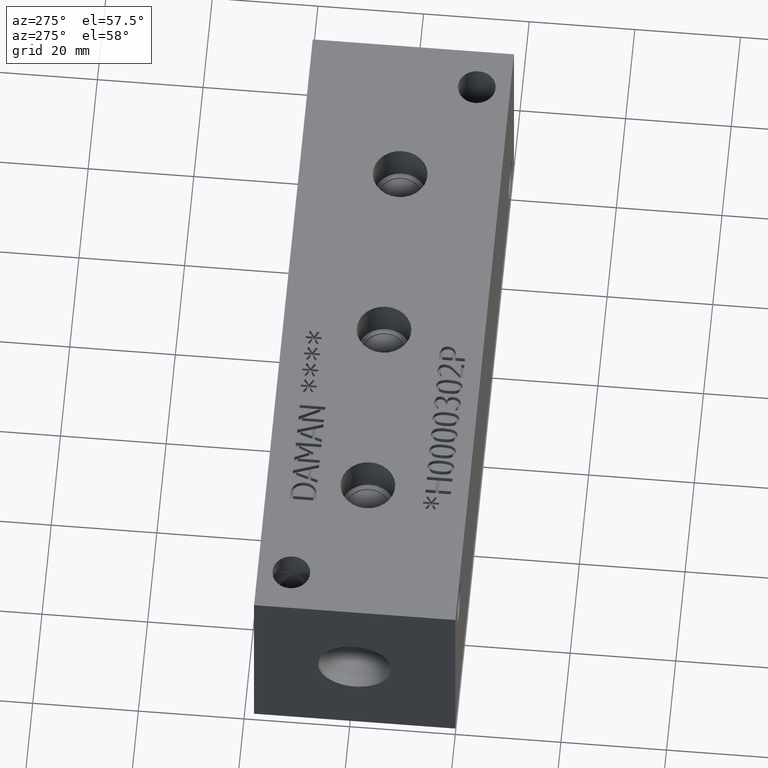
[diagram: clean part render]
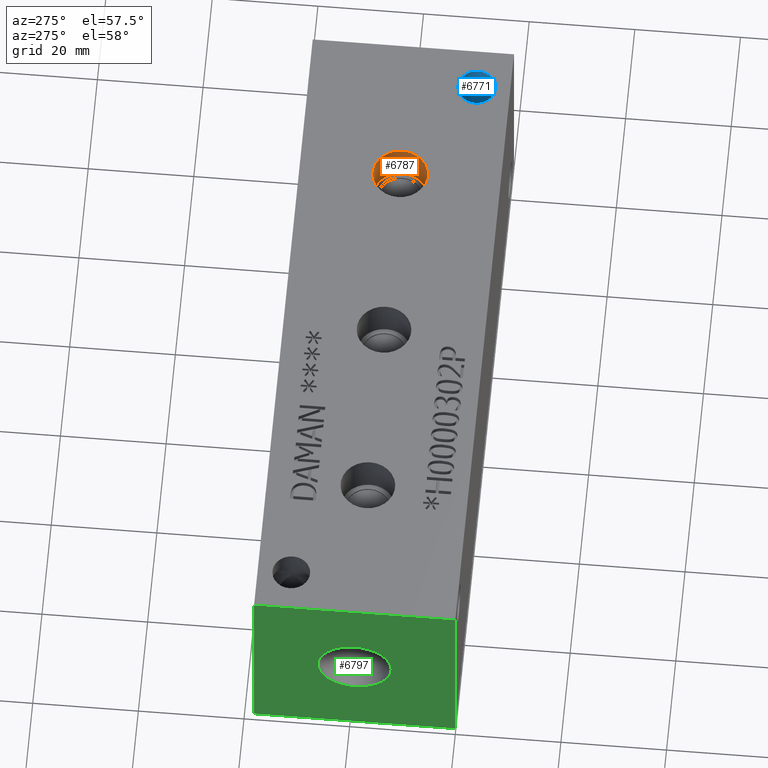
[diagram: same view with three faces highlighted in distinct colors, each labeled with its STEP entity id]
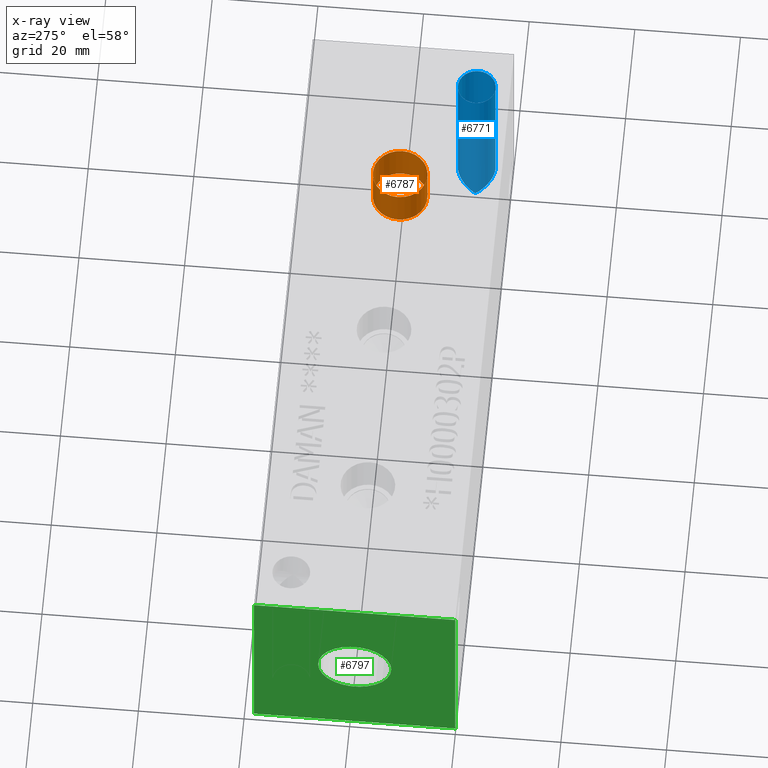
[diagram: x-ray of the same camera — body ghosted, the three highlighted faces saturated]
A machine part, auxiliary view with three faces highlighted in distinct colors.
The next image is the same camera in x-ray (body ghosted, the three faces saturated) — at least one of them is partly hidden behind the body in this view.
Their STEP definitions:

[orange] entity #6787 — the highlighted cylindrical surface (bore or boss wall) has radius 5.165 mm, axis along (0, 0, 1).
#39=CYLINDRICAL_SURFACE('',#7079,5.165);
#45=CIRCLE('',#6880,5.165);
#46=CIRCLE('',#6881,5.165);
#75=CIRCLE('',#7076,5.165);
#76=CIRCLE('',#7077,5.165);
#679=FACE_OUTER_BOUND('',#1058,.T.);
#1058=EDGE_LOOP('',(#5971,#5972,#5973,#5974,#5975,#5976));
#1734=LINE('',#11577,#2400);
#2400=VECTOR('',#8287,5.165);
#2932=VERTEX_POINT('',#10555);
#2933=VERTEX_POINT('',#10556);
#3231=VERTEX_POINT('',#11570);
#3232=VERTEX_POINT('',#11571);
#3708=EDGE_CURVE('',#2932,#2933,#45,.T.);
#3709=EDGE_CURVE('',#2933,#2932,#46,.T.);
#4154=EDGE_CURVE('',#3231,#3232,#75,.T.);
#4155=EDGE_CURVE('',#3232,#3231,#76,.T.);
#4157=EDGE_CURVE('',#2933,#3232,#1734,.T.);
#5971=ORIENTED_EDGE('',*,*,#3708,.F.);
#5972=ORIENTED_EDGE('',*,*,#3709,.F.);
#5973=ORIENTED_EDGE('',*,*,#4157,.T.);
#5974=ORIENTED_EDGE('',*,*,#4154,.F.);
#5975=ORIENTED_EDGE('',*,*,#4155,.F.);
#5976=ORIENTED_EDGE('',*,*,#4157,.F.);
#6787=ADVANCED_FACE('',(#679),#39,.F.);
#6880=AXIS2_PLACEMENT_3D('',#10557,#7495,#7496);
#6881=AXIS2_PLACEMENT_3D('',#10558,#7497,#7498);
#7076=AXIS2_PLACEMENT_3D('',#11572,#8279,#8280);
#7077=AXIS2_PLACEMENT_3D('',#11573,#8281,#8282);
#7079=AXIS2_PLACEMENT_3D('',#11576,#8285,#8286);
#7495=DIRECTION('center_axis',(0.,0.,-1.));
#7496=DIRECTION('ref_axis',(1.,0.,0.));
#7497=DIRECTION('center_axis',(0.,0.,-1.));
#7498=DIRECTION('ref_axis',(1.,0.,0.));
#8279=DIRECTION('center_axis',(0.,0.,1.));
#8280=DIRECTION('ref_axis',(1.,0.,0.));
#8281=DIRECTION('center_axis',(0.,0.,1.));
#8282=DIRECTION('ref_axis',(1.,0.,0.));
#8285=DIRECTION('center_axis',(0.,0.,1.));
#8286=DIRECTION('ref_axis',(1.,0.,0.));
#8287=DIRECTION('',(0.,0.,-1.));
#10555=CARTESIAN_POINT('',(103.59,19.05,38.1));
#10556=CARTESIAN_POINT('',(93.26,19.05,38.1));
#10557=CARTESIAN_POINT('Origin',(98.425,19.05,38.1));
#10558=CARTESIAN_POINT('Origin',(98.425,19.05,38.1));
#11570=CARTESIAN_POINT('',(103.59,19.05,30.226));
#11571=CARTESIAN_POINT('',(93.26,19.05,30.226));
#11572=CARTESIAN_POINT('Origin',(98.425,19.05,30.226));
#11573=CARTESIAN_POINT('Origin',(98.425,19.05,30.226));
#11576=CARTESIAN_POINT('Origin',(98.425,19.05,34.163));
#11577=CARTESIAN_POINT('',(93.26,19.05,34.163));

[blue] entity #6771 — the highlighted cylindrical surface (bore or boss wall) has radius 3.5687 mm, axis along (0, 0, 1).
#19=ELLIPSE('',#7033,5.04690394004086,3.5687);
#22=ELLIPSE('',#7037,5.04690394004086,3.5687);
#29=CYLINDRICAL_SURFACE('',#7039,3.5687);
#53=CIRCLE('',#6888,3.5687);
#54=CIRCLE('',#6889,3.5687);
#663=FACE_OUTER_BOUND('',#1039,.T.);
#1039=EDGE_LOOP('',(#5895,#5896,#5897,#5898,#5899,#5900));
#1721=LINE('',#11499,#2387);
#2387=VECTOR('',#8194,3.5687);
#2940=VERTEX_POINT('',#10571);
#2941=VERTEX_POINT('',#10572);
#3206=VERTEX_POINT('',#11487);
#3207=VERTEX_POINT('',#11489);
#3716=EDGE_CURVE('',#2940,#2941,#53,.T.);
#3717=EDGE_CURVE('',#2941,#2940,#54,.T.);
#4114=EDGE_CURVE('',#3207,#3206,#19,.T.);
#4117=EDGE_CURVE('',#3206,#3207,#22,.T.);
#4120=EDGE_CURVE('',#2941,#3206,#1721,.T.);
#5895=ORIENTED_EDGE('',*,*,#3716,.F.);
#5896=ORIENTED_EDGE('',*,*,#3717,.F.);
#5897=ORIENTED_EDGE('',*,*,#4120,.T.);
#5898=ORIENTED_EDGE('',*,*,#4117,.T.);
#5899=ORIENTED_EDGE('',*,*,#4114,.T.);
#5900=ORIENTED_EDGE('',*,*,#4120,.F.);
#6771=ADVANCED_FACE('',(#663),#29,.F.);
#6888=AXIS2_PLACEMENT_3D('',#10573,#7511,#7512);
#6889=AXIS2_PLACEMENT_3D('',#10574,#7513,#7514);
#7033=AXIS2_PLACEMENT_3D('',#11490,#8179,#8180);
#7037=AXIS2_PLACEMENT_3D('',#11494,#8187,#8188);
#7039=AXIS2_PLACEMENT_3D('',#11498,#8192,#8193);
#7511=DIRECTION('center_axis',(0.,0.,-1.));
#7512=DIRECTION('ref_axis',(1.,0.,0.));
#7513=DIRECTION('center_axis',(0.,0.,-1.));
#7514=DIRECTION('ref_axis',(1.,0.,0.));
#8179=DIRECTION('center_axis',(0.,-0.707106781186548,-0.707106781186547));
#8180=DIRECTION('ref_axis',(0.,-0.707106781186547,0.707106781186548));
#8187=DIRECTION('center_axis',(0.,0.707106781186548,-0.707106781186547));
#8188=DIRECTION('ref_axis',(0.,0.707106781186547,0.707106781186548));
#8192=DIRECTION('center_axis',(0.,0.,1.));
#8193=DIRECTION('ref_axis',(1.,0.,0.));
#8194=DIRECTION('',(0.,0.,-1.));
#10571=CARTESIAN_POINT('',(122.6439,6.35,38.1));
#10572=CARTESIAN_POINT('',(115.5065,6.35,38.1));
#10573=CARTESIAN_POINT('Origin',(119.0752,6.35,38.1));
#10574=CARTESIAN_POINT('Origin',(119.0752,6.35,38.1));
#11487=CARTESIAN_POINT('',(115.5065,6.35,6.35));
#11489=CARTESIAN_POINT('',(122.6439,6.35,6.35));
#11490=CARTESIAN_POINT('Origin',(119.0752,6.35,6.35));
#11494=CARTESIAN_POINT('Origin',(119.0752,6.35,6.35));
#11498=CARTESIAN_POINT('Origin',(119.0752,6.35,-99.8573122382427));
#11499=CARTESIAN_POINT('',(115.5065,6.35,-99.8573122382427));

[green] entity #6797 — the highlighted planar face has unit normal (-1, 0, 0).
#90=CIRCLE('',#7100,6.9342);
#91=CIRCLE('',#7101,6.9342);
#130=FACE_BOUND('',#1071,.T.);
#346=PLANE('',#7103);
#689=FACE_OUTER_BOUND('',#1070,.T.);
#1070=EDGE_LOOP('',(#6018,#6019,#6020,#6021));
#1071=EDGE_LOOP('',(#6022,#6023));
#1341=LINE('',#10554,#2007);
#1742=LINE('',#11627,#2408);
#1743=LINE('',#11628,#2409);
#1744=LINE('',#11629,#2410);
#2007=VECTOR('',#7494,10.);
#2408=VECTOR('',#8343,10.);
#2409=VECTOR('',#8344,10.);
#2410=VECTOR('',#8345,10.);
#2928=VERTEX_POINT('',#10547);
#2931=VERTEX_POINT('',#10552);
#3248=VERTEX_POINT('',#11617);
#3249=VERTEX_POINT('',#11618);
#3250=VERTEX_POINT('',#11625);
#3251=VERTEX_POINT('',#11626);
#3707=EDGE_CURVE('',#2931,#2928,#1341,.T.);
#4175=EDGE_CURVE('',#3248,#3249,#90,.T.);
#4176=EDGE_CURVE('',#3249,#3248,#91,.T.);
#4179=EDGE_CURVE('',#3250,#3251,#1742,.T.);
#4180=EDGE_CURVE('',#3251,#2928,#1743,.T.);
#4181=EDGE_CURVE('',#3250,#2931,#1744,.T.);
#6018=ORIENTED_EDGE('',*,*,#4179,.T.);
#6019=ORIENTED_EDGE('',*,*,#4180,.T.);
#6020=ORIENTED_EDGE('',*,*,#3707,.F.);
#6021=ORIENTED_EDGE('',*,*,#4181,.F.);
#6022=ORIENTED_EDGE('',*,*,#4175,.T.);
#6023=ORIENTED_EDGE('',*,*,#4176,.T.);
#6797=ADVANCED_FACE('',(#689,#130),#346,.T.);
#7100=AXIS2_PLACEMENT_3D('',#11619,#8333,#8334);
#7101=AXIS2_PLACEMENT_3D('',#11620,#8335,#8336);
#7103=AXIS2_PLACEMENT_3D('',#11624,#8341,#8342);
#7494=DIRECTION('',(0.,-1.,0.));
#8333=DIRECTION('center_axis',(1.,0.,0.));
#8334=DIRECTION('ref_axis',(0.,1.,0.));
#8335=DIRECTION('center_axis',(1.,0.,0.));
#8336=DIRECTION('ref_axis',(0.,1.,0.));
#8341=DIRECTION('center_axis',(-1.,0.,0.));
#8342=DIRECTION('ref_axis',(0.,-1.,0.));
#8343=DIRECTION('',(0.,-1.,0.));
#8344=DIRECTION('',(0.,0.,1.));
#8345=DIRECTION('',(0.,0.,1.));
#10547=CARTESIAN_POINT('',(0.,0.,38.1));
#10552=CARTESIAN_POINT('',(0.,38.1,38.1));
#10554=CARTESIAN_POINT('',(0.,38.1,38.1));
#11617=CARTESIAN_POINT('',(0.,25.9842,19.05));
#11618=CARTESIAN_POINT('',(0.,12.1158,19.05));
#11619=CARTESIAN_POINT('Origin',(0.,19.05,19.05));
#11620=CARTESIAN_POINT('Origin',(0.,19.05,19.05));
#11624=CARTESIAN_POINT('Origin',(0.,38.1,0.));
#11625=CARTESIAN_POINT('',(0.,38.1,0.));
#11626=CARTESIAN_POINT('',(0.,0.,0.));
#11627=CARTESIAN_POINT('',(0.,38.1,0.));
#11628=CARTESIAN_POINT('',(0.,0.,0.));
#11629=CARTESIAN_POINT('',(0.,38.1,0.));